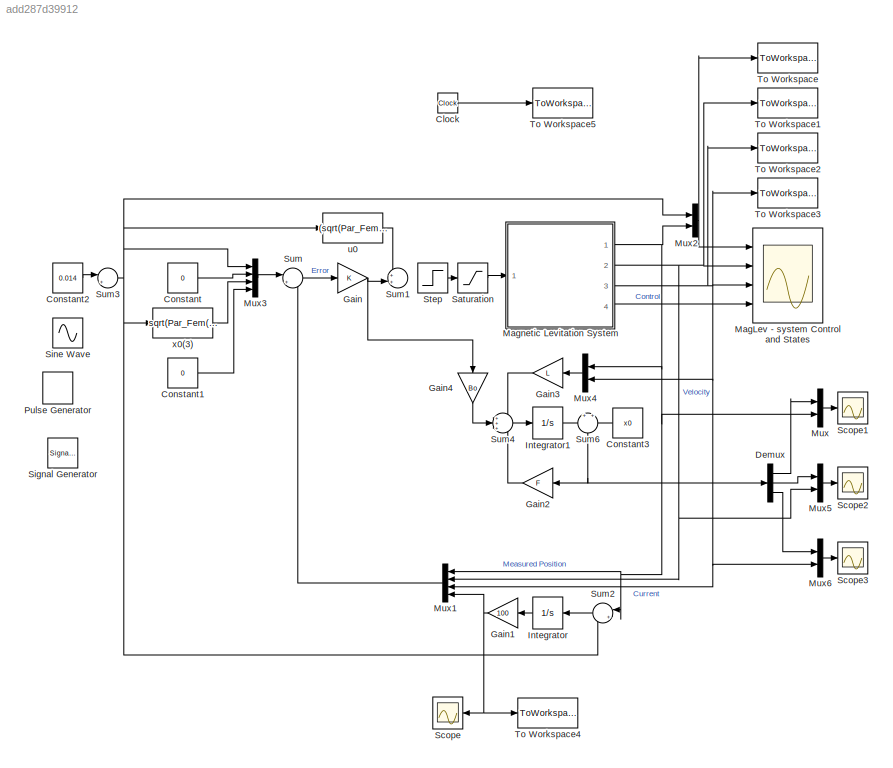
MODEL slx_add287d39912
KIND model
CONFIG AbsTol = 1e-6
CONFIG FixedStep = 0.001
CONFIG MaxStep = auto
CONFIG MinStep = auto
CONFIG PostLoadFcn = load ML_Sensor
CONFIG RelTol = 1e-3
CONFIG SampleTimeConstraint = Unconstrained
CONFIG Solver = ode5
CONFIG SolverMode = SingleTasking
CONFIG SolverName = ode5
CONFIG StartTime = 0.0
CONFIG StopTime = inf
BLOCK [Clock] Clock
BLOCK [Constant] Constant
  Value = 0
BLOCK [Constant] Constant1
  Value = 0
BLOCK [Constant] Constant2
  Value = 0.014
BLOCK [Constant] Constant3
  Commented = on
  Value = x0
BLOCK [Demux] Demux
  Commented = on
  DisplayOption = bar
  Outputs = 3
  Ports = [1, 3]
BLOCK [Gain] Gain
  Gain = K
  Multiplication = Matrix(K*u)
  OutDataTypeStr = Inherit: Inherit via internal rule
  ParamDataTypeStr = Inherit: Inherit via internal rule
  SaturateOnIntegerOverflow = off
BLOCK [Gain] Gain1
  Gain = 100
  OutDataTypeStr = Inherit: Inherit via internal rule
  ParamDataTypeStr = Inherit: Inherit via internal rule
  SaturateOnIntegerOverflow = off
BLOCK [Gain] Gain2
  Commented = on
  Gain = F
  Multiplication = Matrix(K*u)
  OutDataTypeStr = Inherit: Inherit via internal rule
  ParamDataTypeStr = Inherit: Inherit via internal rule
  SaturateOnIntegerOverflow = off
BLOCK [Gain] Gain3
  Commented = on
  Gain = L
  Multiplication = Matrix(K*u)
  OutDataTypeStr = Inherit: Inherit via internal rule
  ParamDataTypeStr = Inherit: Inherit via internal rule
  SaturateOnIntegerOverflow = off
BLOCK [Gain] Gain4
  Commented = on
  Gain = Bo
  Multiplication = Matrix(K*u)
  OutDataTypeStr = Inherit: Inherit via internal rule
  ParamDataTypeStr = Inherit: Inherit via internal rule
  SaturateOnIntegerOverflow = off
BLOCK [Integrator] Integrator
  Ports = [1, 1]
BLOCK [Integrator] Integrator1
  Commented = on
  InitialCondition = x0
  Ports = [1, 1]
BLOCK [Scope] MagLev - system Control and States
  DataFormat = StructureWithTime
  ExtModeLoggingTrig = on
  ExtModeUploadOption = log
  Floating = off
  MaxDataPoints = 10000
  NumInputPorts = 4
  Ports = [4]
  SampleTime = 0
  SaveName = MLExpData
  SaveToWorkspace = on
  TimeRange = 10
  YMax = 0.01009~0.06~1.04~0.65
  YMin = 0.00992~-0.07~0.955~2.77556e-17
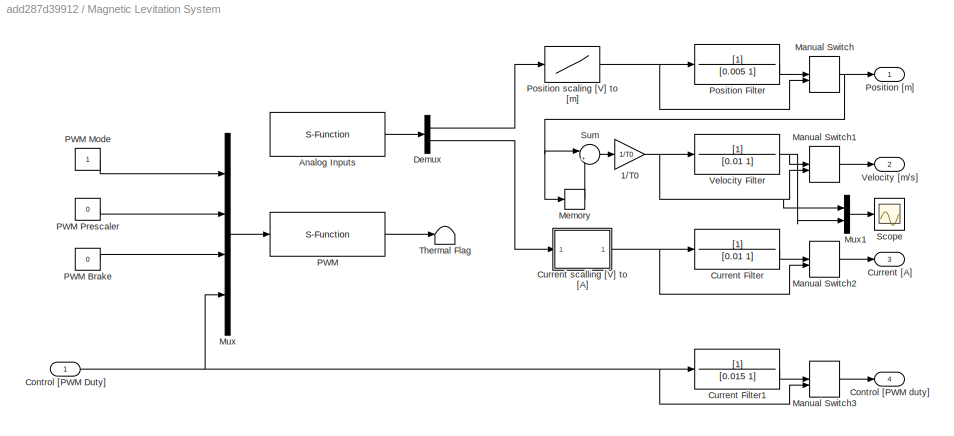
BLOCK [SubSystem] Magnetic Levitation System
  Ports = [1, 4]
  RequestExecContextInheritance = off
BLOCK [Gain] Magnetic Levitation System/1//T0
  Gain = 1/T0
BLOCK [S-Function] Magnetic Levitation System/Analog Inputs
  FunctionName = ML_AnalogInputs
  Parameters = BA, [4 2], [1 1], T0
  Ports = [0, 1]
BLOCK [Inport] Magnetic Levitation System/Control [PWM Duty]
  IconDisplay = Port number
BLOCK [Outport] Magnetic Levitation System/Control [PWM duty]
  IconDisplay = Port number
  Port = 4
BLOCK [TransferFcn] Magnetic Levitation System/Current Filter
  Denominator = [0.01 1]
BLOCK [TransferFcn] Magnetic Levitation System/Current Filter1
  Denominator = [0.015 1]
BLOCK [Outport] Magnetic Levitation System/Current [A]
  IconDisplay = Port number
  Port = 3
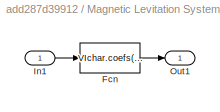
BLOCK [SubSystem] Magnetic Levitation System/Current scalling [V] to [A]
  Ports = [1, 1]
  RequestExecContextInheritance = off
BLOCK [Fcn] Magnetic Levitation System/Current scalling [V] to [A]/Fcn
  Expr = VIchar.coefs(1)*u^2+VIchar.coefs(2)*u+VIchar.coefs(3)
BLOCK [Inport] Magnetic Levitation System/Current scalling [V] to [A]/In1
  IconDisplay = Port number
BLOCK [Outport] Magnetic Levitation System/Current scalling [V] to [A]/Out1
  IconDisplay = Port number
BLOCK [Demux] Magnetic Levitation System/Demux
  Outputs = 2
  Ports = [1, 2]
BLOCK [ManualSwitch] Magnetic Levitation System/Manual Switch
  CurrentSetting = 0
BLOCK [ManualSwitch] Magnetic Levitation System/Manual Switch1
  CurrentSetting = 0
BLOCK [ManualSwitch] Magnetic Levitation System/Manual Switch2
  CurrentSetting = 0
BLOCK [ManualSwitch] Magnetic Levitation System/Manual Switch3
  CurrentSetting = 0
BLOCK [Memory] Magnetic Levitation System/Memory
BLOCK [Mux] Magnetic Levitation System/Mux
  DisplayOption = bar
  Ports = [4, 1]
BLOCK [Mux] Magnetic Levitation System/Mux1
  DisplayOption = bar
  Inputs = 2
  Ports = [2, 1]
BLOCK [S-Function] Magnetic Levitation System/PWM
  FunctionName = ML_PWM
  Parameters = BA, T0
  Ports = [1, 1]
BLOCK [Constant] Magnetic Levitation System/PWM Brake
  Value = 0
BLOCK [Constant] Magnetic Levitation System/PWM Mode
BLOCK [Constant] Magnetic Levitation System/PWM Prescaler
  Value = 0
BLOCK [TransferFcn] Magnetic Levitation System/Position Filter
  Denominator = [0.005 1]
BLOCK [Outport] Magnetic Levitation System/Position [m]
  IconDisplay = Port number
BLOCK [Lookup] Magnetic Levitation System/Position scaling [V] to [m]
  InputValues = sensor.V(end:-1:1)
  Table = sensor.d(end:-1:1)
BLOCK [Scope] Magnetic Levitation System/Scope
  Floating = off
  NumInputPorts = 1
  Ports = [1]
  SaveName = ScopeData1
  YMax = 0.125
  YMin = -0.15
BLOCK [Sum] Magnetic Levitation System/Sum
  IconShape = round
  Inputs = |+-
  Ports = [2, 1]
BLOCK [Terminator] Magnetic Levitation System/Thermal Flag
BLOCK [TransferFcn] Magnetic Levitation System/Velocity Filter
  Denominator = [0.01 1]
BLOCK [Outport] Magnetic Levitation System/Velocity [m//s]
  IconDisplay = Port number
  Port = 2
BLOCK [Mux] Mux
  Commented = on
  DisplayOption = bar
  Inputs = 2
  Ports = [2, 1]
BLOCK [Mux] Mux1
  DisplayOption = bar
  Ports = [4, 1]
BLOCK [Mux] Mux2
  DisplayOption = bar
  Inputs = 2
  Ports = [2, 1]
BLOCK [Mux] Mux3
  DisplayOption = bar
  Ports = [4, 1]
BLOCK [Mux] Mux4
  Commented = on
  DisplayOption = bar
  Inputs = 2
  Ports = [2, 1]
BLOCK [Mux] Mux5
  Commented = on
  DisplayOption = bar
  Inputs = 2
  Ports = [2, 1]
BLOCK [Mux] Mux6
  Commented = on
  DisplayOption = bar
  Inputs = 2
  Ports = [2, 1]
BLOCK [DiscretePulseGenerator] Pulse Generator
  Amplitude = 0.003
  Commented = on
  Period = 1
  Ports = [0, 1]
  PulseType = Time based
  PulseWidth = 50
BLOCK [Saturate] Saturation
  InputPortMap = u0
  LowerLimit = 0
  Ports = [1, 1]
  UpperLimit = 1
BLOCK [Scope] Scope
  Floating = off
  LimitDataPoints = off
  NumInputPorts = 1
  Ports = [1]
  TimeRange = 10
  YMax = -0.0666
  YMin = -0.0684
BLOCK [Scope] Scope1
  Commented = on
  Floating = off
  NumInputPorts = 1
  Ports = [1]
  SaveName = ScopeData2
  YMax = 0.05
  YMin = -0.6
BLOCK [Scope] Scope2
  Commented = on
  Floating = off
  NumInputPorts = 1
  Ports = [1]
  SaveName = ScopeData3
  YMax = 0.25
  YMin = -3.25
BLOCK [Scope] Scope3
  Commented = on
  Floating = off
  NumInputPorts = 1
  Ports = [1]
  SaveName = ScopeData4
  YMax = 2.5
  YMin = -52.5
BLOCK [SignalGenerator] Signal Generator
  Amplitude = 0.002
  Commented = on
  Frequency = 5
  Ports = [0, 1]
  WaveForm = sawtooth
BLOCK [Sin] Sine Wave
  Amplitude = 0
  Commented = on
  Frequency = 2*pi*10
  Ports = [0, 1]
  SampleTime = 0
BLOCK [Step] Step
  SampleTime = 0
  Time = 5
BLOCK [Sum] Sum
  IconShape = round
  InputSameDT = off
  Inputs = |+-
  OutDataTypeStr = Inherit: Inherit via internal rule
  Ports = [2, 1]
  SaturateOnIntegerOverflow = off
BLOCK [Sum] Sum1
  IconShape = round
  InputSameDT = off
  Inputs = ++|
  OutDataTypeStr = Inherit: Inherit via internal rule
  Ports = [2, 1]
  SaturateOnIntegerOverflow = off
BLOCK [Sum] Sum2
  IconShape = round
  InputSameDT = off
  Inputs = |+-
  OutDataTypeStr = Inherit: Inherit via internal rule
  Ports = [2, 1]
  SaturateOnIntegerOverflow = off
BLOCK [Sum] Sum3
  IconShape = round
  InputSameDT = off
  Inputs = |+-
  OutDataTypeStr = Inherit: Inherit via internal rule
  Ports = [2, 1]
  SaturateOnIntegerOverflow = off
BLOCK [Sum] Sum4
  Commented = on
  IconShape = round
  InputSameDT = off
  Inputs = +++
  OutDataTypeStr = Inherit: Inherit via internal rule
  Ports = [3, 1]
  SaturateOnIntegerOverflow = off
BLOCK [Sum] Sum6
  Commented = on
  IconShape = round
  InputSameDT = off
  Inputs = +|+
  OutDataTypeStr = Inherit: Inherit via internal rule
  Ports = [2, 1]
  SaturateOnIntegerOverflow = off
BLOCK [ToWorkspace] To Workspace
  FixptAsFi = on
  MaxDataPoints = inf
  Ports = [1]
  SampleTime = -1
  Save2DSignal = 3-D array (concatenate along third dimension)
  VariableName = sim_pos
BLOCK [ToWorkspace] To Workspace1
  FixptAsFi = on
  MaxDataPoints = inf
  Ports = [1]
  SampleTime = -1
  Save2DSignal = 3-D array (concatenate along third dimension)
  VariableName = sim_vel
BLOCK [ToWorkspace] To Workspace2
  FixptAsFi = on
  MaxDataPoints = inf
  Ports = [1]
  SampleTime = -1
  Save2DSignal = 3-D array (concatenate along third dimension)
  VariableName = sim_cur
BLOCK [ToWorkspace] To Workspace3
  FixptAsFi = on
  MaxDataPoints = inf
  Ports = [1]
  SampleTime = -1
  Save2DSignal = 3-D array (concatenate along third dimension)
  VariableName = sim_con
BLOCK [ToWorkspace] To Workspace4
  FixptAsFi = on
  MaxDataPoints = inf
  Ports = [1]
  SampleTime = -1
  Save2DSignal = 3-D array (concatenate along third dimension)
  VariableName = sim_int
BLOCK [ToWorkspace] To Workspace5
  FixptAsFi = on
  MaxDataPoints = inf
  Ports = [1]
  SampleTime = -1
  Save2DSignal = 3-D array (concatenate along third dimension)
  VariableName = sim_time
BLOCK [Fcn] u0
  Expr = (sqrt(Par_Fem(2)*m*g*exp(x0(1)/Par_Fem(2))/Par_Fem(1))-uc)/ki
BLOCK [Fcn] x0(3)
  Expr = sqrt(Par_Fem(2)*m*g*exp(u/Par_Fem(2))/Par_Fem(1))
LINE Clock:1 -> To Workspace5:1
LINE Constant1:1 -> Mux3:4
LINE Constant2:1 -> Sum3:1
LINE Constant3:1 -> Sum6:2
LINE Constant:1 -> Mux3:2
LINE Demux:1 -> Mux:1
LINE Demux:2 -> Mux5:1
LINE Demux:3 -> Mux6:1
NET Gain1:1 -> Mux1:4, Scope:1, To Workspace4:1
LINE Gain2:1 -> Sum4:3
LINE Gain3:1 -> Sum4:1
LINE Gain4:1 -> Sum4:2
NET Gain:1 -> Gain4:1, Sum1:2
LINE Integrator1:1 -> Sum6:1
LINE Integrator:1 -> Gain1:1
NET Magnetic Levitation System/1//T0:1 -> Magnetic Levitation System/Manual Switch1:2, Magnetic Levitation System/Mux1:1, Magnetic Levitation System/Velocity Filter:1
LINE Magnetic Levitation System/Analog Inputs:1 -> Magnetic Levitation System/Demux:1
NET Magnetic Levitation System/Control [PWM Duty]:1 -> Magnetic Levitation System/Current Filter1:1, Magnetic Levitation System/Manual Switch3:2, Magnetic Levitation System/Mux:4
LINE Magnetic Levitation System/Current Filter1:1 -> Magnetic Levitation System/Manual Switch3:1
LINE Magnetic Levitation System/Current Filter:1 -> Magnetic Levitation System/Manual Switch2:1
LINE Magnetic Levitation System/Current scalling [V] to [A]/Fcn:1 -> Magnetic Levitation System/Current scalling [V] to [A]/Out1:1
LINE Magnetic Levitation System/Current scalling [V] to [A]/In1:1 -> Magnetic Levitation System/Current scalling [V] to [A]/Fcn:1
NET Magnetic Levitation System/Current scalling [V] to [A]:1 -> Magnetic Levitation System/Current Filter:1, Magnetic Levitation System/Manual Switch2:2
LINE Magnetic Levitation System/Demux:1 -> Magnetic Levitation System/Position scaling [V] to [m]:1
LINE Magnetic Levitation System/Demux:2 -> Magnetic Levitation System/Current scalling [V] to [A]:1
LINE Magnetic Levitation System/Manual Switch1:1 -> Magnetic Levitation System/Velocity [m//s]:1
LINE Magnetic Levitation System/Manual Switch2:1 -> Magnetic Levitation System/Current [A]:1
LINE Magnetic Levitation System/Manual Switch3:1 -> Magnetic Levitation System/Control [PWM duty]:1
NET Magnetic Levitation System/Manual Switch:1 -> Magnetic Levitation System/Memory:1, Magnetic Levitation System/Position [m]:1, Magnetic Levitation System/Sum:1
LINE Magnetic Levitation System/Memory:1 -> Magnetic Levitation System/Sum:2
LINE Magnetic Levitation System/Mux1:1 -> Magnetic Levitation System/Scope:1
LINE Magnetic Levitation System/Mux:1 -> Magnetic Levitation System/PWM:1
LINE Magnetic Levitation System/PWM Brake:1 -> Magnetic Levitation System/Mux:3
LINE Magnetic Levitation System/PWM Mode:1 -> Magnetic Levitation System/Mux:1
LINE Magnetic Levitation System/PWM Prescaler:1 -> Magnetic Levitation System/Mux:2
LINE Magnetic Levitation System/PWM:1 -> Magnetic Levitation System/Thermal Flag:1
LINE Magnetic Levitation System/Position Filter:1 -> Magnetic Levitation System/Manual Switch:1
NET Magnetic Levitation System/Position scaling [V] to [m]:1 -> Magnetic Levitation System/Manual Switch:2, Magnetic Levitation System/Position Filter:1
LINE Magnetic Levitation System/Sum:1 -> Magnetic Levitation System/1//T0:1
NET Magnetic Levitation System/Velocity Filter:1 -> Magnetic Levitation System/Manual Switch1:1, Magnetic Levitation System/Mux1:2
NET Magnetic Levitation System:1 -> Mux1:1, Mux2:2, Mux4:1, Mux:2, Sum2:1
NET Magnetic Levitation System:2 -> MagLev - system Control and States:2, Mux1:2, Mux5:2, To Workspace1:1
NET Magnetic Levitation System:3 -> MagLev - system Control and States:3, Mux1:3, Mux4:2, Mux6:2, To Workspace2:1, To Workspace3:1
LINE Magnetic Levitation System:4 -> MagLev - system Control and States:4
LINE Mux1:1 -> Sum:2
NET Mux2:1 -> MagLev - system Control and States:1, To Workspace:1
LINE Mux3:1 -> Sum:1
LINE Mux4:1 -> Gain3:1
LINE Mux5:1 -> Scope2:1
LINE Mux6:1 -> Scope3:1
LINE Mux:1 -> Scope1:1
LINE Saturation:1 -> Magnetic Levitation System:1
LINE Step:1 -> Saturation:1
LINE Sum2:1 -> Integrator:1
NET Sum3:1 -> Mux2:1, Mux3:1, Sum2:2, u0:1, x0(3):1
LINE Sum4:1 -> Integrator1:1
NET Sum6:1 -> Demux:1, Gain2:1
LINE Sum:1 -> Gain:1
LINE u0:1 -> Sum1:1
LINE x0(3):1 -> Mux3:3
note: NET lines group one-source signal fan-out (src -> all destinations, sorted); 1:1 wires keep LINE
